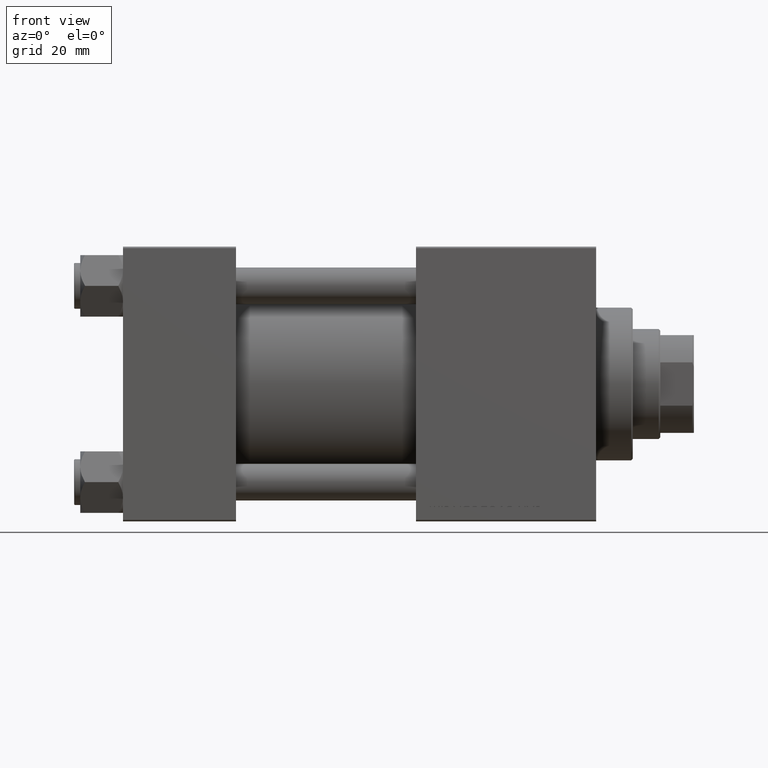
[diagram: clean part render]
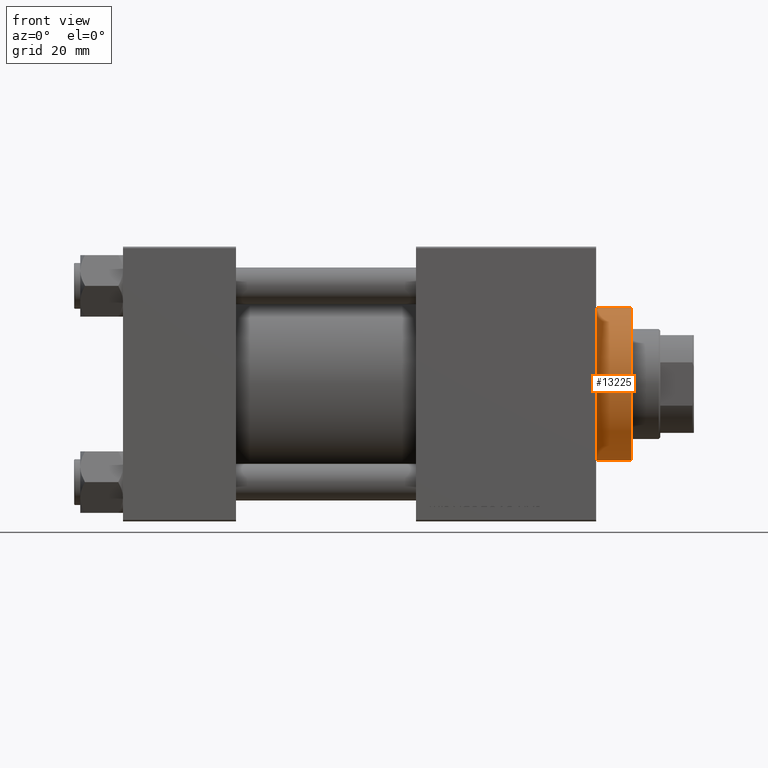
[diagram: same view with one face highlighted and labeled with its STEP entity id]
A machine part, front view. The second image highlights one B-rep face of the part: STEP entity #13225.
In plain terms, the highlighted cylindrical surface (partial cylindrical patch) has radius 25 mm, axis along (-1, -0, 0).
Its self-contained STEP definition (entity closure, byte-faithful):
#4028 = CIRCLE ( 'NONE', #29956, 25.00000000000000000 ) ;
#4261 = AXIS2_PLACEMENT_3D ( 'NONE', #23999, #39480, #24249 ) ;
#5835 = DIRECTION ( 'NONE',  ( -0.000000000000000000, -0.000000000000000000, -1.000000000000000000 ) ) ;
#5919 = EDGE_CURVE ( 'NONE', #6486, #13511, #4028, .T. ) ;
#5977 = VERTEX_POINT ( 'NONE', #18688 ) ;
#6486 = VERTEX_POINT ( 'NONE', #22635 ) ;
#8498 = CYLINDRICAL_SURFACE ( 'NONE', #4261, 25.00000000000000000 ) ;
#8840 = EDGE_LOOP ( 'NONE', ( #38287, #30650, #27690, #23372 ) ) ;
#9053 = CARTESIAN_POINT ( 'NONE',  ( 25.00000000000000000, 3.061616997868383043E-15, 40.70000000000000284 ) ) ;
#11281 = EDGE_CURVE ( 'NONE', #5977, #37967, #36654, .T. ) ;
#12313 = AXIS2_PLACEMENT_3D ( 'NONE', #43708, #39406, #46755 ) ;
#13225 = ADVANCED_FACE ( 'NONE', ( #43290 ), #8498, .T. ) ;
#13357 = DIRECTION ( 'NONE',  ( -0.000000000000000000, -0.000000000000000000, -1.000000000000000000 ) ) ;
#13511 = VERTEX_POINT ( 'NONE', #29480 ) ;
#14628 = CARTESIAN_POINT ( 'NONE',  ( 0.000000000000000000, 0.000000000000000000, 40.20000000000000284 ) ) ;
#16986 = CARTESIAN_POINT ( 'NONE',  ( -25.00000000000000000, 0.000000000000000000, 40.70000000000000284 ) ) ;
#18688 = CARTESIAN_POINT ( 'NONE',  ( -25.00000000000000000, 0.000000000000000000, 28.69999999999999929 ) ) ;
#22635 = CARTESIAN_POINT ( 'NONE',  ( 25.00000000000000000, 3.061616997868383043E-15, 40.20000000000000284 ) ) ;
#23372 = ORIENTED_EDGE ( 'NONE', *, *, #11281, .T. ) ;
#23999 = CARTESIAN_POINT ( 'NONE',  ( 0.000000000000000000, 0.000000000000000000, 40.70000000000000284 ) ) ;
#24249 = DIRECTION ( 'NONE',  ( -1.000000000000000000, 0.000000000000000000, 0.000000000000000000 ) ) ;
#26046 = VECTOR ( 'NONE', #5835, 1000.000000000000000 ) ;
#27690 = ORIENTED_EDGE ( 'NONE', *, *, #30927, .T. ) ;
#29480 = CARTESIAN_POINT ( 'NONE',  ( -25.00000000000000000, 0.000000000000000000, 40.20000000000000284 ) ) ;
#29956 = AXIS2_PLACEMENT_3D ( 'NONE', #14628, #30114, #33203 ) ;
#30114 = DIRECTION ( 'NONE',  ( 0.000000000000000000, 0.000000000000000000, -1.000000000000000000 ) ) ;
#30650 = ORIENTED_EDGE ( 'NONE', *, *, #5919, .T. ) ;
#30927 = EDGE_CURVE ( 'NONE', #13511, #5977, #35800, .T. ) ;
#33203 = DIRECTION ( 'NONE',  ( 1.000000000000000000, 0.000000000000000000, 0.000000000000000000 ) ) ;
#33479 = CARTESIAN_POINT ( 'NONE',  ( 25.00000000000000000, 3.061616997868383043E-15, 28.69999999999999929 ) ) ;
#35179 = VECTOR ( 'NONE', #13357, 1000.000000000000000 ) ;
#35800 = LINE ( 'NONE', #16986, #26046 ) ;
#36654 = CIRCLE ( 'NONE', #12313, 25.00000000000000000 ) ;
#37967 = VERTEX_POINT ( 'NONE', #33479 ) ;
#38287 = ORIENTED_EDGE ( 'NONE', *, *, #40767, .F. ) ;
#39290 = LINE ( 'NONE', #9053, #35179 ) ;
#39406 = DIRECTION ( 'NONE',  ( 0.000000000000000000, 0.000000000000000000, 1.000000000000000000 ) ) ;
#39480 = DIRECTION ( 'NONE',  ( -0.000000000000000000, -0.000000000000000000, -1.000000000000000000 ) ) ;
#40767 = EDGE_CURVE ( 'NONE', #6486, #37967, #39290, .T. ) ;
#43290 = FACE_OUTER_BOUND ( 'NONE', #8840, .T. ) ;
#43708 = CARTESIAN_POINT ( 'NONE',  ( 0.000000000000000000, 0.000000000000000000, 28.69999999999999929 ) ) ;
#46755 = DIRECTION ( 'NONE',  ( 1.000000000000000000, 0.000000000000000000, 0.000000000000000000 ) ) ;